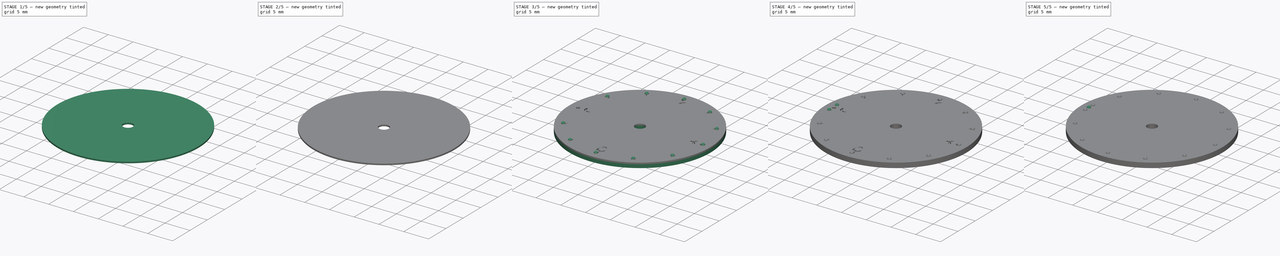
[diagram: build sequence overview — one tinted view per stage of 5, left to right]
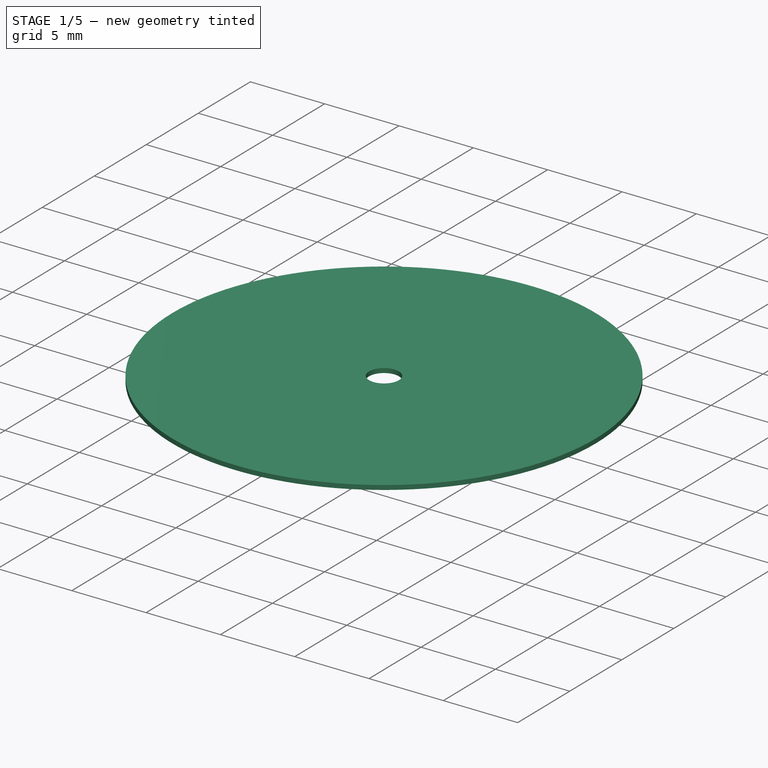
[diagram: stage 1 of 5 — iso view after this stage's code; geometry added in this stage tinted green]
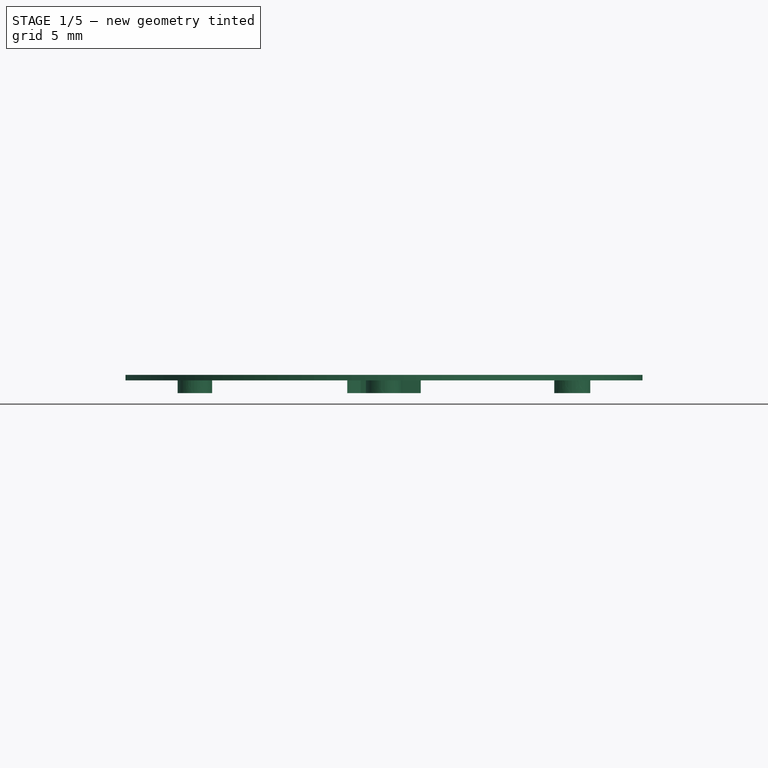
[diagram: stage 1 of 5 — front view after this stage's code; geometry added in this stage tinted green]
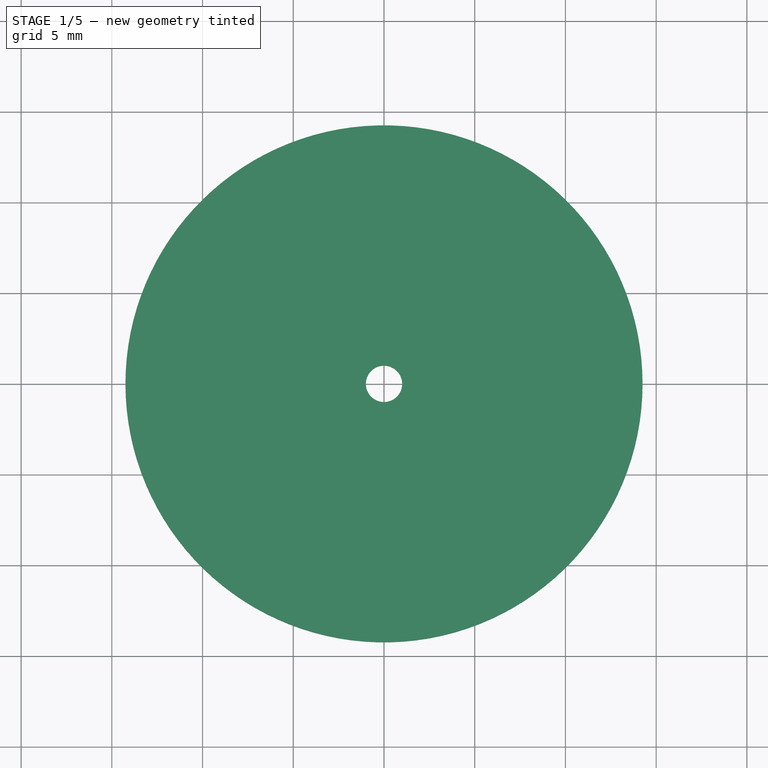
[diagram: stage 1 of 5 — top view after this stage's code; geometry added in this stage tinted green]
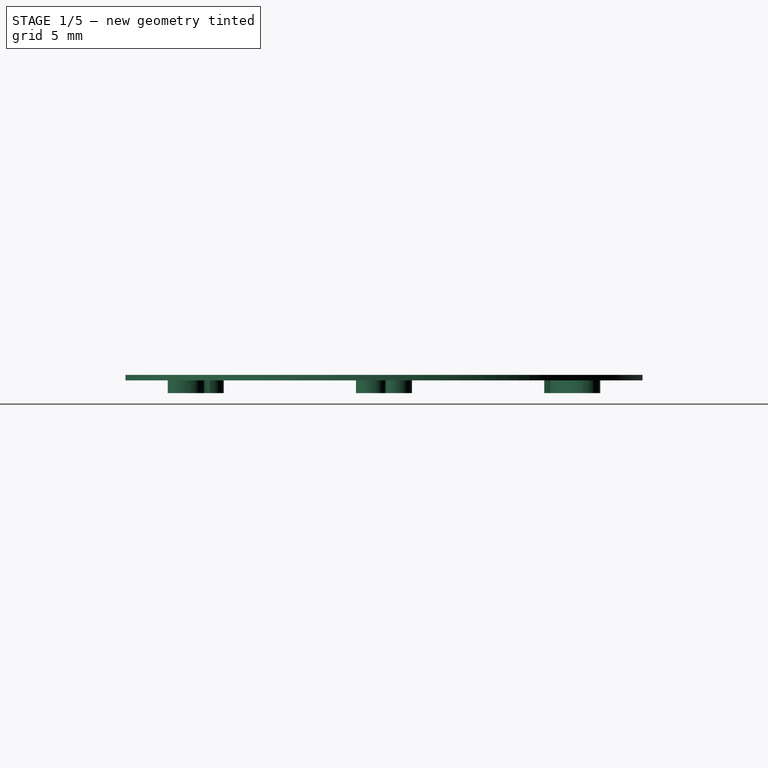
[diagram: stage 1 of 5 — right view after this stage's code; geometry added in this stage tinted green]
FCSTD DOCUMENT  (FreeCAD 0.19R20415 (Git))
Label: Vostok_Amphibia_dial
License: All rights reserved
LicenseURL: http://en.wikipedia.org/wiki/All_rights_reserved
objects: Sketcher::SketchObject×8, Part::Sphere×5, Part::FeaturePython×4, Part::Part2DObjectPython×4, Part::Extrusion×4, PartDesign::Pad×3, PartDesign::Body×3, Part::MultiFuse×2, Image::ImagePlane×2, Part::Cut×2, PartDesign::Pocket×1, PartDesign::PolarPattern×1, App::DocumentObjectGroup×1
note: 41 computed .brp shape members not serialized (recipe doc carries the construction recipe); baked Part::Feature solids carry a one-line shape summary decoded from their .brp

FEATURE [PartDesign::Body] Body008  label="DialSandwichHaut"
  Group = -> [Sketch031,Pad007,Sketch,Pocket,PolarPattern]
  Origin = -> Origin008
  Tip = -> PolarPattern
FEATURE [Image::ImagePlane] ImagePlane001
  Placement = pos=(0,0,-1) rot=(0,0,1;0rad)
  XSize = 28.5288
  YSize = 28.5288
FEATURE [Part::Part2DObjectPython] ShapeString  # Draft 2D object (typed FeaturePython)
  FontFile = <path>
  Placement = pos=(-2.49098,8.82935,0) rot=(0,0,1;0rad)
  Size = 3.25
  String = 12
  Tracking = 0
FEATURE [Part::Part2DObjectPython] ShapeString003  # Draft 2D object (typed FeaturePython)
  FontFile = <path>
  Placement = pos=(-11.5494,-1.54565,0) rot=(0,0,1;0rad)
  Size = 3.25
  String = 9
  Tracking = 0
FEATURE [Part::Part2DObjectPython] ShapeString006  # Draft 2D object (typed FeaturePython)
  FontFile = <path>
  Placement = pos=(-1.162,-11.9206,0) rot=(0,0,1;0rad)
  Size = 3.25
  String = 6
  Tracking = 0
FEATURE [Part::Part2DObjectPython] ShapeString009  # Draft 2D object (typed FeaturePython)
  FontFile = <path>
  Placement = pos=(9.20334,-1.54565,0) rot=(0,0,1;0rad)
  Size = 3.25
  String = 3
  Tracking = 0
FEATURE [App::DocumentObjectGroup] FcClock
  Group = -> [ShapeString,ShapeString003,ShapeString006,ShapeString009]
FEATURE [Sketcher::SketchObject] Sketch034
  sketch-geometry (119):
    g0: LineSegment StartX=-0.910828 StartY=8.82935 StartZ=0 EndX=-1.28344 EndY=8.82935 EndZ=0
    g1: LineSegment StartX=-0.910828 StartY=11.9206 StartZ=0 EndX=-0.910828 EndY=8.82935 EndZ=0
    g2: LineSegment StartX=-1.15096 StartY=11.9206 StartZ=0 EndX=-0.910828 EndY=11.9206 EndZ=0
    g3: BSplineCurve PolesCount=3 KnotsCount=2 Degree=2 IsPeriodic=0
    g4: BSplineCurve PolesCount=3 KnotsCount=2 Degree=2 IsPeriodic=0
    g5: LineSegment StartX=-2.02866 StartY=10.7725 StartZ=0 EndX=-2.02866 EndY=11.1257 EndZ=0
    g6: BSplineCurve PolesCount=3 KnotsCount=2 Degree=2 IsPeriodic=0
    g7: BSplineCurve PolesCount=3 KnotsCount=2 Degree=2 IsPeriodic=0
    g8: LineSegment StartX=-1.28344 StartY=8.82935 StartZ=0 EndX=-1.28344 EndY=11.2375 EndZ=0
    g9: LineSegment StartX=2.02866 StartY=9.18264 StartZ=0 EndX=2.02866 EndY=8.82935 EndZ=0
    g10: LineSegment StartX=0.539597 StartY=9.18264 StartZ=0 EndX=2.02866 EndY=9.18264 EndZ=0
    g11: BSplineCurve PolesCount=3 KnotsCount=2 Degree=2 IsPeriodic=0
    g12: BSplineCurve PolesCount=3 KnotsCount=2 Degree=2 IsPeriodic=0
    g13: BSplineCurve PolesCount=3 KnotsCount=2 Degree=2 IsPeriodic=0
    g14: BSplineCurve PolesCount=3 KnotsCount=2 Degree=2 IsPeriodic=0
    g15: BSplineCurve PolesCount=3 KnotsCount=2 Degree=2 IsPeriodic=0
    g16: BSplineCurve PolesCount=3 KnotsCount=2 Degree=2 IsPeriodic=0
    g17: BSplineCurve PolesCount=3 KnotsCount=2 Degree=2 IsPeriodic=0
    g18: BSplineCurve PolesCount=3 KnotsCount=2 Degree=2 IsPeriodic=0
    g19: BSplineCurve PolesCount=3 KnotsCount=2 Degree=2 IsPeriodic=0
    g20: LineSegment StartX=0.476115 StartY=10.9491 StartZ=0 EndX=0.0924628 EndY=10.9905 EndZ=0
    g21: BSplineCurve PolesCount=3 KnotsCount=2 Degree=2 IsPeriodic=0
    g22: BSplineCurve PolesCount=3 KnotsCount=2 Degree=2 IsPeriodic=0
    g23: BSplineCurve PolesCount=3 KnotsCount=2 Degree=2 IsPeriodic=0
    g24: BSplineCurve PolesCount=3 KnotsCount=2 Degree=2 IsPeriodic=0
    g25: BSplineCurve PolesCount=3 KnotsCount=2 Degree=2 IsPeriodic=0
    g26: BSplineCurve PolesCount=3 KnotsCount=2 Degree=2 IsPeriodic=0
    g27: BSplineCurve PolesCount=3 KnotsCount=2 Degree=2 IsPeriodic=0
    g28: BSplineCurve PolesCount=3 KnotsCount=2 Degree=2 IsPeriodic=0
    g29: BSplineCurve PolesCount=3 KnotsCount=2 Degree=2 IsPeriodic=0
    g30: LineSegment StartX=2.02866 StartY=8.82935 StartZ=0 EndX=0.0220807 EndY=8.82935 EndZ=0
    g31: LineSegment StartX=-11.3176 StartY=-0.783864 StartZ=0 EndX=-10.9588 EndY=-0.750743 EndZ=0
    g32: BSplineCurve PolesCount=3 KnotsCount=2 Degree=2 IsPeriodic=0
    g33: BSplineCurve PolesCount=3 KnotsCount=2 Degree=2 IsPeriodic=0
    g34: BSplineCurve PolesCount=3 KnotsCount=2 Degree=2 IsPeriodic=0
    g35: BSplineCurve PolesCount=3 KnotsCount=2 Degree=2 IsPeriodic=0
    g36: BSplineCurve PolesCount=3 KnotsCount=2 Degree=2 IsPeriodic=0
    g37: BSplineCurve PolesCount=3 KnotsCount=2 Degree=2 IsPeriodic=0
    g38: BSplineCurve PolesCount=3 KnotsCount=2 Degree=2 IsPeriodic=0
    g39: BSplineCurve PolesCount=3 KnotsCount=2 Degree=2 IsPeriodic=0
    g40: BSplineCurve PolesCount=3 KnotsCount=2 Degree=2 IsPeriodic=0
    g41: BSplineCurve PolesCount=3 KnotsCount=2 Degree=2 IsPeriodic=0
    g42: BSplineCurve PolesCount=3 KnotsCount=2 Degree=2 IsPeriodic=0
    g43: BSplineCurve PolesCount=3 KnotsCount=2 Degree=2 IsPeriodic=0
    g44: BSplineCurve PolesCount=3 KnotsCount=2 Degree=2 IsPeriodic=0
    g45: BSplineCurve PolesCount=3 KnotsCount=2 Degree=2 IsPeriodic=0
    g46: BSplineCurve PolesCount=3 KnotsCount=2 Degree=2 IsPeriodic=0
    g47: BSplineCurve PolesCount=3 KnotsCount=2 Degree=2 IsPeriodic=0
    g48: BSplineCurve PolesCount=3 KnotsCount=2 Degree=2 IsPeriodic=0
    g49: BSplineCurve PolesCount=3 KnotsCount=2 Degree=2 IsPeriodic=0
    g50: BSplineCurve PolesCount=3 KnotsCount=2 Degree=2 IsPeriodic=0
    g51: BSplineCurve PolesCount=3 KnotsCount=2 Degree=2 IsPeriodic=0
    g52: BSplineCurve PolesCount=3 KnotsCount=2 Degree=2 IsPeriodic=0
    g53: BSplineCurve PolesCount=3 KnotsCount=2 Degree=2 IsPeriodic=0
    g54: BSplineCurve PolesCount=3 KnotsCount=2 Degree=2 IsPeriodic=0
    g55: BSplineCurve PolesCount=3 KnotsCount=2 Degree=2 IsPeriodic=0
    g56: BSplineCurve PolesCount=3 KnotsCount=2 Degree=2 IsPeriodic=0
    g57: BSplineCurve PolesCount=3 KnotsCount=2 Degree=2 IsPeriodic=0
    g58: BSplineCurve PolesCount=3 KnotsCount=2 Degree=2 IsPeriodic=0
    g59: BSplineCurve PolesCount=3 KnotsCount=2 Degree=2 IsPeriodic=0
    g60: BSplineCurve PolesCount=3 KnotsCount=2 Degree=2 IsPeriodic=0
    g61: LineSegment StartX=0.948089 StartY=-9.59528 StartZ=0 EndX=0.576858 EndY=-9.62426 EndZ=0
    g62: BSplineCurve PolesCount=3 KnotsCount=2 Degree=2 IsPeriodic=0
    g63: BSplineCurve PolesCount=3 KnotsCount=2 Degree=2 IsPeriodic=0
    g64: BSplineCurve PolesCount=3 KnotsCount=2 Degree=2 IsPeriodic=0
    g65: BSplineCurve PolesCount=3 KnotsCount=2 Degree=2 IsPeriodic=0
    g66: BSplineCurve PolesCount=3 KnotsCount=2 Degree=2 IsPeriodic=0
    g67: BSplineCurve PolesCount=3 KnotsCount=2 Degree=2 IsPeriodic=0
    g68: BSplineCurve PolesCount=3 KnotsCount=2 Degree=2 IsPeriodic=0
    g69: BSplineCurve PolesCount=3 KnotsCount=2 Degree=2 IsPeriodic=0
    g70: BSplineCurve PolesCount=3 KnotsCount=2 Degree=2 IsPeriodic=0
    g71: BSplineCurve PolesCount=3 KnotsCount=2 Degree=2 IsPeriodic=0
    g72: BSplineCurve PolesCount=3 KnotsCount=2 Degree=2 IsPeriodic=0
    g73: BSplineCurve PolesCount=3 KnotsCount=2 Degree=2 IsPeriodic=0
    g74: BSplineCurve PolesCount=3 KnotsCount=2 Degree=2 IsPeriodic=0
    g75: BSplineCurve PolesCount=3 KnotsCount=2 Degree=2 IsPeriodic=0
    g76: BSplineCurve PolesCount=3 KnotsCount=2 Degree=2 IsPeriodic=0
    g77: BSplineCurve PolesCount=3 KnotsCount=2 Degree=2 IsPeriodic=0
    g78: BSplineCurve PolesCount=3 KnotsCount=2 Degree=2 IsPeriodic=0
    g79: BSplineCurve PolesCount=3 KnotsCount=2 Degree=2 IsPeriodic=0
    g80: BSplineCurve PolesCount=3 KnotsCount=2 Degree=2 IsPeriodic=0
    g81: BSplineCurve PolesCount=3 KnotsCount=2 Degree=2 IsPeriodic=0
    g82: BSplineCurve PolesCount=3 KnotsCount=2 Degree=2 IsPeriodic=0
    g83: BSplineCurve PolesCount=3 KnotsCount=2 Degree=2 IsPeriodic=0
    g84: BSplineCurve PolesCount=3 KnotsCount=2 Degree=2 IsPeriodic=0
    g85: BSplineCurve PolesCount=3 KnotsCount=2 Degree=2 IsPeriodic=0
    g86: BSplineCurve PolesCount=3 KnotsCount=2 Degree=2 IsPeriodic=0
    g87: BSplineCurve PolesCount=3 KnotsCount=2 Degree=2 IsPeriodic=0
    g88: BSplineCurve PolesCount=3 KnotsCount=2 Degree=2 IsPeriodic=0
    g89: LineSegment StartX=9.38137 StartY=-0.712102 StartZ=0 EndX=9.75398 EndY=-0.66242 EndZ=0
    g90: BSplineCurve PolesCount=3 KnotsCount=2 Degree=2 IsPeriodic=0
    g91: BSplineCurve PolesCount=3 KnotsCount=2 Degree=2 IsPeriodic=0
    g92: BSplineCurve PolesCount=3 KnotsCount=2 Degree=2 IsPeriodic=0
    g93: BSplineCurve PolesCount=3 KnotsCount=2 Degree=2 IsPeriodic=0
    g94: BSplineCurve PolesCount=3 KnotsCount=2 Degree=2 IsPeriodic=0
    g95: BSplineCurve PolesCount=3 KnotsCount=2 Degree=2 IsPeriodic=0
    g96: BSplineCurve PolesCount=3 KnotsCount=2 Degree=2 IsPeriodic=0
    g97: BSplineCurve PolesCount=3 KnotsCount=2 Degree=2 IsPeriodic=0
    g98: BSplineCurve PolesCount=3 KnotsCount=2 Degree=2 IsPeriodic=0
    g99: BSplineCurve PolesCount=3 KnotsCount=2 Degree=2 IsPeriodic=0
    g100: BSplineCurve PolesCount=3 KnotsCount=2 Degree=2 IsPeriodic=0
    g101: BSplineCurve PolesCount=3 KnotsCount=2 Degree=2 IsPeriodic=0
    g102: BSplineCurve PolesCount=3 KnotsCount=2 Degree=2 IsPeriodic=0
    g103: LineSegment StartX=9.79124 StartY=0.66242 StartZ=0 EndX=9.41863 EndY=0.728662 EndZ=0
    g104: BSplineCurve PolesCount=3 KnotsCount=2 Degree=2 IsPeriodic=0
    g105: BSplineCurve PolesCount=3 KnotsCount=2 Degree=2 IsPeriodic=0
    g106: BSplineCurve PolesCount=3 KnotsCount=2 Degree=2 IsPeriodic=0
    g107: BSplineCurve PolesCount=3 KnotsCount=2 Degree=2 IsPeriodic=0
    g108: BSplineCurve PolesCount=3 KnotsCount=2 Degree=2 IsPeriodic=0
    g109: BSplineCurve PolesCount=3 KnotsCount=2 Degree=2 IsPeriodic=0
    g110: BSplineCurve PolesCount=3 KnotsCount=2 Degree=2 IsPeriodic=0
    g111: LineSegment StartX=10.1169 StartY=-0.129724 StartZ=0 EndX=10.1583 EndY=0.224947 EndZ=0
    g112: BSplineCurve PolesCount=3 KnotsCount=2 Degree=2 IsPeriodic=0
    g113: BSplineCurve PolesCount=3 KnotsCount=2 Degree=2 IsPeriodic=0
    g114: BSplineCurve PolesCount=3 KnotsCount=2 Degree=2 IsPeriodic=0
    g115: BSplineCurve PolesCount=3 KnotsCount=2 Degree=2 IsPeriodic=0
    g116: BSplineCurve PolesCount=3 KnotsCount=2 Degree=2 IsPeriodic=0
    g117: BSplineCurve PolesCount=3 KnotsCount=2 Degree=2 IsPeriodic=0
    g118: BSplineCurve PolesCount=3 KnotsCount=2 Degree=2 IsPeriodic=0
  constraints (127):
    c: Horizontal(g0)
    c: Coincident(g0,g1)
    c: Vertical(g1)
    c: Coincident(g1,g2)
    c: Horizontal(g2)
    c: Coincident(g2,g3)
    c: Coincident(g3,g4)
    c: Coincident(g4,g5)
    c: Vertical(g5)
    c: Coincident(g5,g6)
    c: Coincident(g6,g7)
    c: Coincident(g7,g8)
    c: Vertical(g8)
    c: Coincident(g8,g0)
    c: Vertical(g9)
    c: Coincident(g9,g10)
    c: Horizontal(g10)
    c: Coincident(g10,g11)
    c: Coincident(g11,g12)
    c: Coincident(g12,g13)
    c: Coincident(g13,g14)
    c: Coincident(g14,g15)
    c: Coincident(g15,g16)
    c: Coincident(g16,g17)
    c: Coincident(g17,g18)
    c: Coincident(g18,g19)
    c: Coincident(g19,g20)
    c: Coincident(g20,g21)
    c: Coincident(g21,g22)
    c: Coincident(g22,g23)
    c: Coincident(g23,g24)
    c: Coincident(g24,g25)
    c: Coincident(g25,g26)
    c: Coincident(g26,g27)
    c: Coincident(g27,g28)
    c: Coincident(g28,g29)
    c: Coincident(g29,g30)
    c: Horizontal(g30)
    c: Coincident(g30,g9)
    c: Coincident(g31,g32)
    c: Coincident(g32,g33)
    c: Coincident(g33,g34)
    c: Coincident(g34,g35)
    c: Coincident(g35,g36)
    c: Coincident(g36,g37)
    c: Coincident(g37,g38)
    c: Coincident(g38,g39)
    c: Coincident(g39,g40)
    c: Coincident(g40,g41)
    c: Coincident(g41,g42)
    c: Coincident(g42,g43)
    c: Coincident(g43,g44)
    c: Coincident(g44,g45)
    c: Coincident(g45,g46)
    c: Coincident(g46,g47)
    c: Coincident(g47,g48)
    c: Coincident(g48,g49)
    c: Coincident(g49,g50)
    c: Coincident(g50,g51)
    c: Coincident(g51,g52)
    c: Coincident(g52,g31)
    c: Coincident(g53,g54)
    c: Coincident(g54,g55)
    c: Coincident(g55,g56)
    c: Coincident(g56,g57)
    c: Coincident(g57,g58)
    c: Coincident(g58,g59)
    c: Coincident(g59,g60)
    c: Coincident(g60,g53)
    c: Coincident(g61,g62)
    c: Coincident(g62,g63)
    c: Coincident(g63,g64)
    c: Coincident(g64,g65)
    c: Coincident(g65,g66)
    c: Coincident(g66,g67)
    c: Coincident(g67,g68)
    c: Coincident(g68,g69)
    c: Coincident(g69,g70)
    c: Coincident(g70,g71)
    c: Coincident(g71,g72)
    c: Coincident(g72,g73)
    c: Coincident(g73,g74)
    c: Coincident(g74,g75)
    c: Coincident(g75,g76)
    c: Coincident(g76,g77)
    c: Coincident(g77,g78)
    c: Coincident(g78,g79)
    c: Coincident(g79,g61)
    c: Coincident(g80,g81)
    c: Coincident(g81,g82)
    c: Coincident(g82,g83)
    c: Coincident(g83,g84)
    c: Coincident(g84,g85)
    c: Coincident(g85,g86)
    c: Coincident(g86,g87)
    c: Coincident(g87,g88)
    c: Coincident(g88,g80)
    c: Coincident(g89,g90)
    c: Coincident(g90,g91)
    c: Coincident(g91,g92)
    c: Coincident(g92,g93)
    c: Coincident(g93,g94)
    c: Coincident(g94,g95)
    c: Coincident(g95,g96)
    c: Coincident(g96,g97)
    c: Coincident(g97,g98)
    c: Coincident(g98,g99)
    c: Coincident(g99,g100)
    c: Coincident(g100,g101)
    c: Coincident(g101,g102)
    c: Coincident(g102,g103)
    c: Coincident(g103,g104)
    c: Coincident(g104,g105)
    c: Coincident(g105,g106)
    c: Coincident(g106,g107)
    c: Coincident(g107,g108)
    c: Coincident(g108,g109)
    c: Coincident(g109,g110)
    c: Coincident(g110,g111)
    c: Coincident(g111,g112)
    c: Coincident(g112,g113)
    c: Coincident(g113,g114)
    c: Coincident(g114,g115)
    c: Coincident(g115,g116)
    c: Coincident(g116,g117)
    c: Coincident(g117,g118)
    c: Coincident(g118,g89)
FEATURE [Sketcher::SketchObject] Sketch035
  sketch-geometry (11):
    g0: Circle CenterX=0 CenterY=12.5 CenterZ=0 NormalX=0 NormalY=0 NormalZ=1 AngleXU=0 Radius=0.35
    g1: LineSegment [constr] StartX=6 StartY=10.3923 StartZ=0 EndX=0 EndY=0 EndZ=0
    g2: LineSegment StartX=6 StartY=10.3923 StartZ=0 EndX=6.13194 EndY=11.4708 EndZ=0
    g3: LineSegment StartX=6.13194 StartY=11.4708 StartZ=0 EndX=6.86806 EndY=11.0458 EndZ=0
    g4: LineSegment StartX=6.86806 StartY=11.0458 StartZ=0 EndX=6 EndY=10.3923 EndZ=0
    g5: LineSegment [constr] StartX=6 StartY=10.3923 StartZ=0 EndX=6.5 EndY=11.2583 EndZ=0
    g6: LineSegment StartX=10.3923 StartY=6 StartZ=0 EndX=11.0458 EndY=6.86806 EndZ=0
    g7: LineSegment StartX=11.0458 StartY=6.86806 StartZ=0 EndX=11.4708 EndY=6.13194 EndZ=0
    g8: LineSegment StartX=11.4708 StartY=6.13194 StartZ=0 EndX=10.3923 EndY=6 EndZ=0
    g9: LineSegment [constr] StartX=10.3923 StartY=6 StartZ=0 EndX=11.2583 EndY=6.5 EndZ=0
    g10: LineSegment [constr] StartX=10.3923 StartY=6 StartZ=0 EndX=0 EndY=0 EndZ=0
  constraints (29):
    c: PointOnObject(g0,g-2)
    c: Radius(g0) = 0.35
    c: DistanceY(g0) = 12.5
    c: Coincident(g1,g-1)
    c: Coincident(g1,g2)
    c: Coincident(g2,g3)
    c: Coincident(g3,g4)
    c: Coincident(g4,g2)
    c: Angle(g1,g-2) = 0.523599
    c: Coincident(g5,g2)
    c: PointOnObject(g5,g3)
    c: Parallel(g5,g1)
    c: Symmetric(g2,g3,g5)
    c: Distance(g3) = 0.85
    c: Distance(g2,g5) = 1
    c: Distance(g1) = 12
    c: Coincident(g6,g7)
    c: Coincident(g7,g8)
    c: Coincident(g8,g6)
    c: Coincident(g9,g6)
    c: PointOnObject(g9,g7)
    c: Symmetric(g6,g7,g9)
    c: Equal(g3,g7) = 0.85
    c: Distance(g6,g9) = 1
    c: Coincident(g10,g6)
    c: Coincident(g10,g-1)
    c: Parallel(g10,g9)
    c: Angle(g10,g1) = 0.523599
    c: Equal(g10,g1)
FEATURE [Part::FeaturePython] Array003  # Draft array (typed FeaturePython)
  Angle = 360
  ArrayType = 1
  Axis = (0,0,1)
  Base = -> Sketch035
  Center = (0,0,0)
  Fuse = false
  IntervalAxis = (0,0,0)
  IntervalX = (1,0,0)
  IntervalY = (0,1,0)
  IntervalZ = (0,0,1)
  NumberCircles = 2
  NumberPolar = 4
  NumberX = 1
  NumberY = 1
  NumberZ = 1
  RadialDistance = 1
  Symmetry = 1
  TangentialDistance = 1
FEATURE [Sketcher::SketchObject] Sketch036
  sketch-geometry (1):
    g0: Circle CenterX=-5.9 CenterY=2.75 CenterZ=0 NormalX=0 NormalY=0 NormalZ=1 AngleXU=0 Radius=5
  constraints (3):
    c: Radius(g0) = 5
    c: DistanceX(g0) = -5.9
    c: DistanceY(g0) = 2.75
FEATURE [Part::Extrusion] Extrude
  Base = -> Sketch034
  Dir = (0,0,1)
  DirMode = 2
  FaceMakerClass = Part::FaceMakerBullseye
  LengthFwd = 1
  LengthRev = 0
  Solid = true
  Symmetric = false
FEATURE [Part::Extrusion] Extrude002
  Base = -> Sketch036
  Dir = (0,0,1)
  DirMode = 2
  FaceMakerClass = Part::FaceMakerBullseye
  LengthFwd = 1
  LengthRev = 0
  Solid = true
  Symmetric = false
FEATURE [Part::Cut] Cut
  Base = -> Extrude
  Tool = -> Extrude002
FEATURE [Sketcher::SketchObject] Sketch037
  AttachmentOffset = pos=(0,0,0.7) rot=(0,0,1;0rad)
  MapMode = 5
  Placement = pos=(0,0,0.7) rot=(0,0,1;0rad)
  sketch-geometry (2):
    g0: Circle CenterX=0 CenterY=0 CenterZ=0 NormalX=0 NormalY=0 NormalZ=1 AngleXU=0 Radius=14.25
    g1: Circle CenterX=0 CenterY=0 CenterZ=0 NormalX=0 NormalY=0 NormalZ=1 AngleXU=0 Radius=1
  constraints (4):
    c: Coincident(g0,g-1)
    c: Diameter(g0) = 28.5
    c: Coincident(g1,g0)
    c: Diameter(g1) = 2
FEATURE [Part::Extrusion] Extrude003
  Base = -> Sketch037
  Dir = (0,0,1)
  DirMode = 2
  FaceMakerClass = Part::FaceMakerBullseye
  LengthFwd = 0.3
  LengthRev = 0
  Solid = true
  Symmetric = false
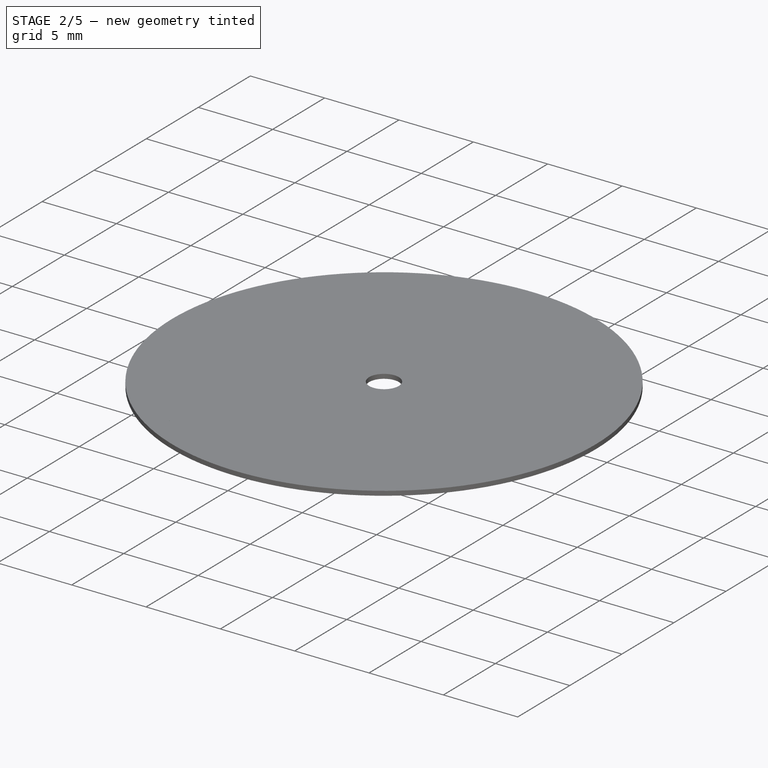
[diagram: stage 2 of 5 — iso view after this stage's code; geometry added in this stage tinted green]
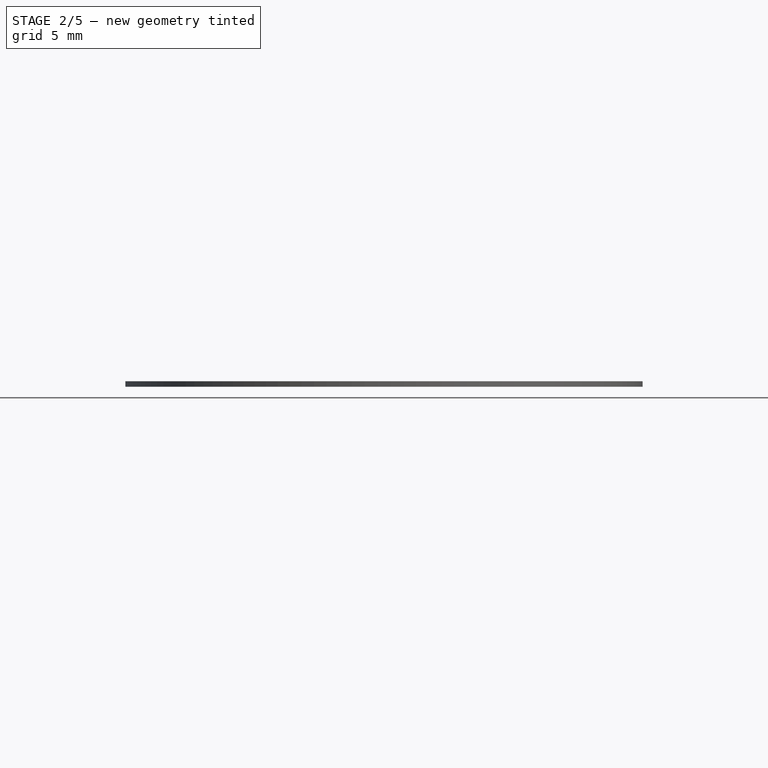
[diagram: stage 2 of 5 — front view after this stage's code; geometry added in this stage tinted green]
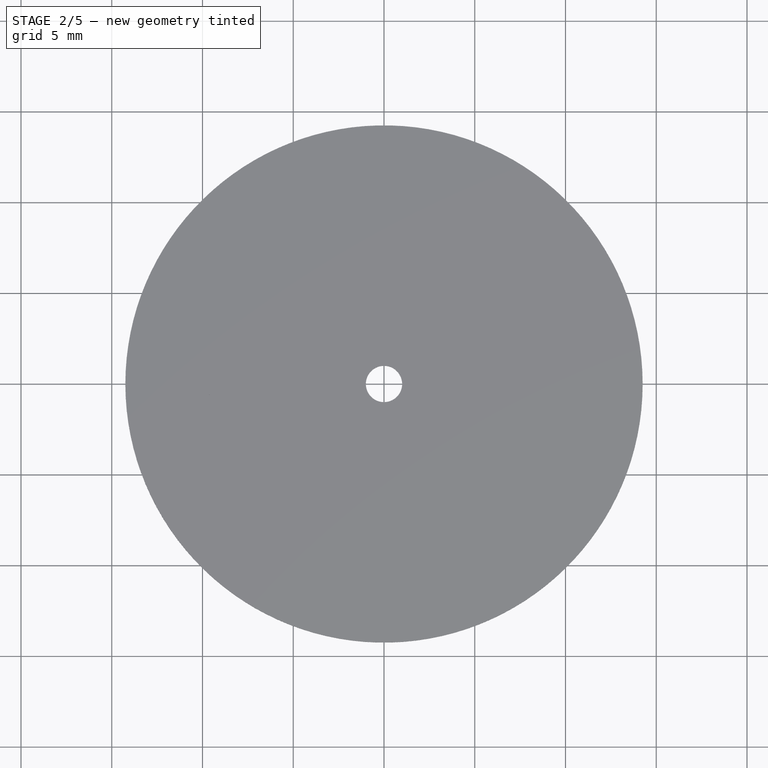
[diagram: stage 2 of 5 — top view after this stage's code; geometry added in this stage tinted green]
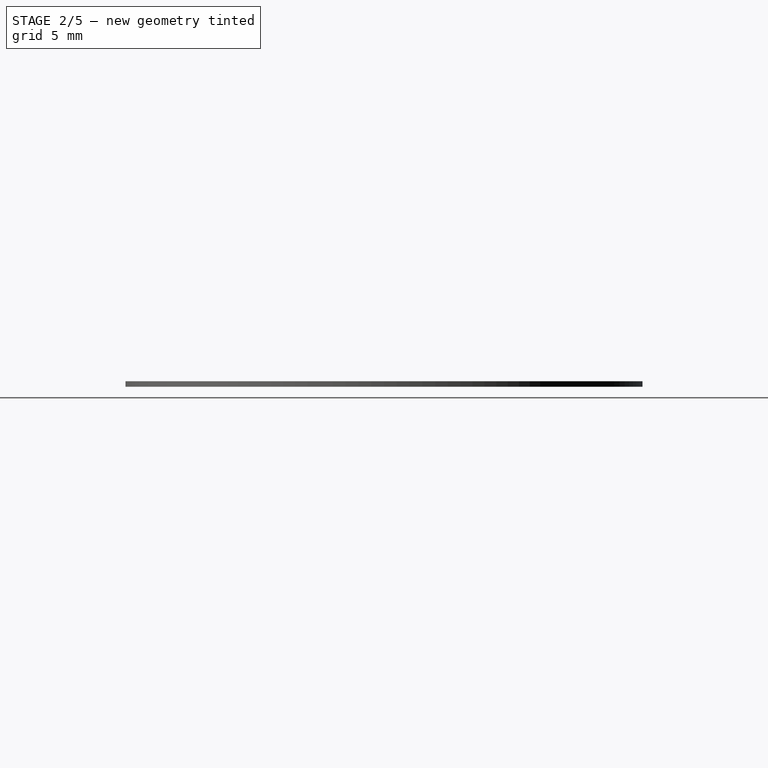
[diagram: stage 2 of 5 — right view after this stage's code; geometry added in this stage tinted green]
FEATURE [PartDesign::Body] Body007  label="DialSandwichBas"
  Group = -> [Sketch030,Pad006]
  Origin = -> Origin007
  Tip = -> Pad006
FEATURE [Sketcher::SketchObject] Sketch031
  AttachmentOffset = pos=(0,0,0.7) rot=(0,0,1;0rad)
  MapMode = 5
  Placement = pos=(0,0,0.7) rot=(0,0,1;0rad)
  Support = -> [XY_Plane008]
  sketch-geometry (2):
    g0: Circle CenterX=0 CenterY=0 CenterZ=0 NormalX=0 NormalY=0 NormalZ=1 AngleXU=0 Radius=14.25
    g1: Circle CenterX=0 CenterY=0 CenterZ=0 NormalX=0 NormalY=0 NormalZ=1 AngleXU=0 Radius=1
  constraints (4):
    c: Coincident(g0,g-1)
    c: Diameter(g0) = 28.5
    c: Coincident(g1,g0)
    c: Diameter(g1) = 2
FEATURE [PartDesign::Pad] Pad007
  AllowMultiFace = false
  Length = 0.3
  Length2 = 100
  Profile = -> Sketch031
  Type = 0
FEATURE [Part::Extrusion] Extrude001
  Base = -> Array003
  Dir = (0,0,1)
  DirMode = 2
  FaceMakerClass = Part::FaceMakerBullseye
  LengthFwd = 1
  LengthRev = 0
  Solid = true
  Symmetric = false
FEATURE [Part::MultiFuse] Fusion001
  Shapes = -> [Extrude001,Cut]
FEATURE [Part::Cut] Cut001  label="DialSandwichHaut_B"
  Base = -> Extrude003
  Tool = -> Fusion001
note: 4 file-system paths scrubbed to <path> (originals preserved in the JSON sidecar)
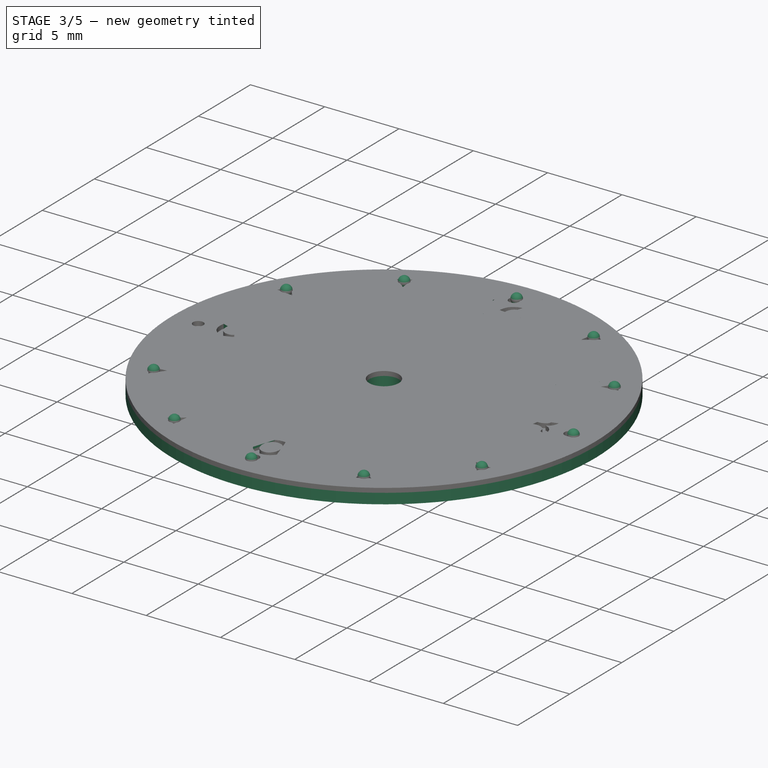
[diagram: stage 3 of 5 — iso view after this stage's code; geometry added in this stage tinted green]
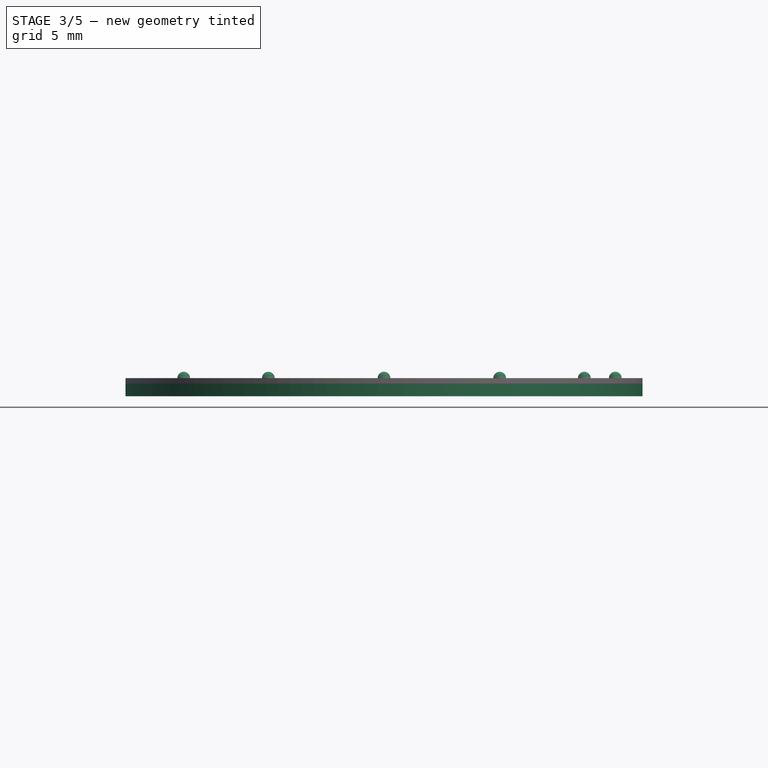
[diagram: stage 3 of 5 — front view after this stage's code; geometry added in this stage tinted green]
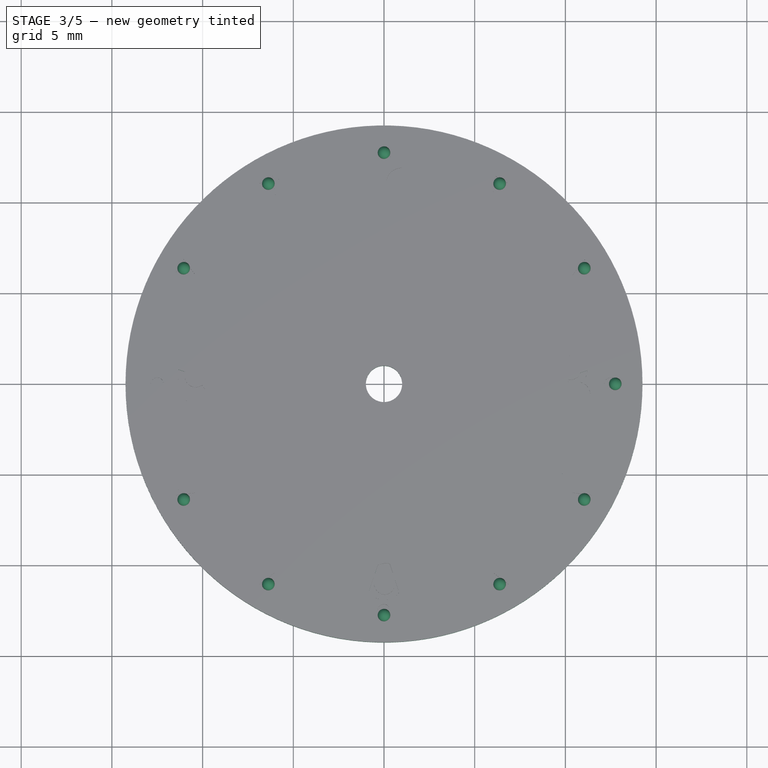
[diagram: stage 3 of 5 — top view after this stage's code; geometry added in this stage tinted green]
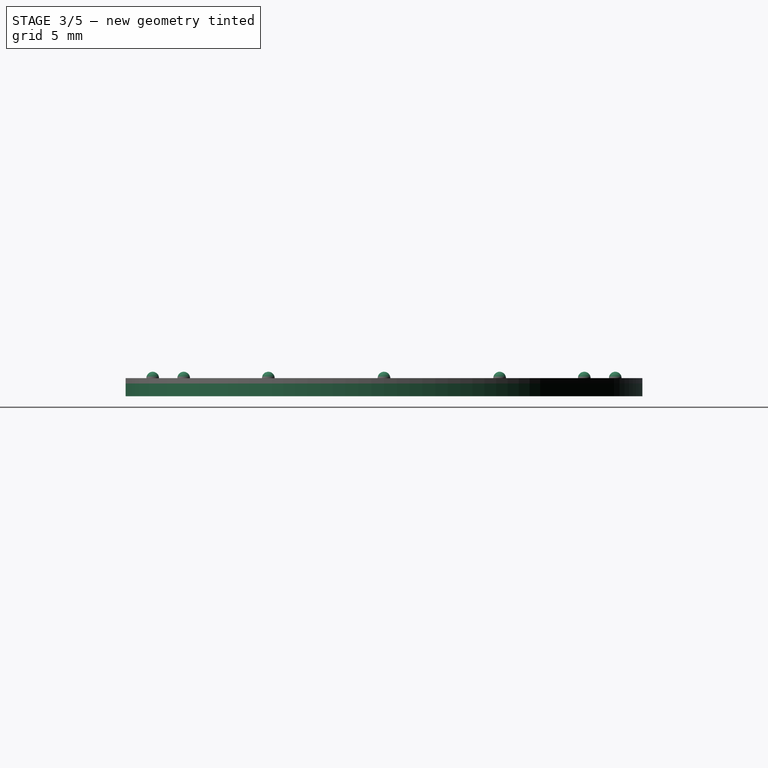
[diagram: stage 3 of 5 — right view after this stage's code; geometry added in this stage tinted green]
FEATURE [Part::Sphere] Sphere004  label="Sphère004"
  Angle1 = -90
  Angle2 = 90
  Angle3 = 360
  AttacherType = Attacher::AttachEngine3D
  Placement = pos=(-11.0418,-6.375,1) rot=(0,0,1;0.523599rad)
  Radius = 0.35
FEATURE [Part::FeaturePython] Array002  # Draft array (typed FeaturePython)
  Angle = 300
  ArrayType = 1
  Axis = (0,0,1)
  Base = -> Sphere004
  Center = (0,0,0)
  Fuse = false
  IntervalAxis = (0,0,0)
  IntervalX = (1,0,0)
  IntervalY = (0,1,0)
  IntervalZ = (0,0,1)
  NumberCircles = 2
  NumberPolar = 11
  NumberX = 1
  NumberY = 1
  NumberZ = 1
  RadialDistance = 1
  Symmetry = 1
  TangentialDistance = 1
FEATURE [Image::ImagePlane] ImagePlane
  Placement = pos=(0,0,1.01) rot=(0,0,1;0rad)
  XSize = 28.51
  YSize = 28.51
FEATURE [Sketcher::SketchObject] Sketch030
  MapMode = 5
  Support = -> [XY_Plane007]
  sketch-geometry (2):
    g0: Circle CenterX=0 CenterY=0 CenterZ=0 NormalX=0 NormalY=0 NormalZ=1 AngleXU=0 Radius=14.25
    g1: Circle CenterX=0 CenterY=0 CenterZ=0 NormalX=0 NormalY=0 NormalZ=1 AngleXU=0 Radius=1
  constraints (4):
    c: Coincident(g0,g-1)
    c: Diameter(g0) = 28.5
    c: Coincident(g1,g0)
    c: Diameter(g1) = 2
FEATURE [PartDesign::Pad] Pad006
  AllowMultiFace = false
  Length = 0.7
  Length2 = 100
  Profile = -> Sketch030
  Type = 0
FEATURE [Sketcher::SketchObject] Sketch
  AttachmentOffset = pos=(0,0,1) rot=(0,0,1;0rad)
  MapMode = 5
  Placement = pos=(0,0,1) rot=(0,0,1;0rad)
  Support = -> [XY_Plane008]
  sketch-geometry (31):
    g0: LineSegment StartX=-1.14194 StartY=13.4516 StartZ=0 EndX=1.14194 EndY=13.4516 EndZ=0
    g1: LineSegment StartX=1.37929 StartY=13.1231 StartZ=0 EndX=0.237348 EndY=9.67148 EndZ=0
    g2: LineSegment StartX=-0.237348 StartY=9.67148 StartZ=0 EndX=-1.37929 EndY=13.1231 EndZ=0
    g3: LineSegment [constr] StartX=0 StartY=0 StartZ=0 EndX=7.125 EndY=12.3409 EndZ=0
    g4: Circle [constr] CenterX=0 CenterY=0 CenterZ=0 NormalX=0 NormalY=0 NormalZ=1 AngleXU=0 Radius=14.25
    g5: LineSegment [constr] StartX=0 StartY=0 StartZ=0 EndX=12.3409 EndY=7.125 EndZ=0
    g6: LineSegment StartX=4.33373 StartY=8.75625 StartZ=0 EndX=6.08113 EndY=11.7828 EndZ=0
    g7: LineSegment StartX=6.42264 StartY=11.8743 StartZ=0 EndX=7.07215 EndY=11.4993 EndZ=0
    g8: LineSegment StartX=7.16366 StartY=11.1578 StartZ=0 EndX=5.41627 EndY=8.13125 EndZ=0
    g9: LineSegment StartX=5.07476 StartY=8.03974 StartZ=0 EndX=4.42524 EndY=8.41474 EndZ=0
    g10: LineSegment StartX=8.13125 StartY=5.41627 StartZ=0 EndX=11.1578 EndY=7.16366 EndZ=0
    g11: LineSegment StartX=11.4993 StartY=7.07215 StartZ=0 EndX=11.8743 EndY=6.42264 EndZ=0
    g12: LineSegment StartX=11.7828 StartY=6.08113 StartZ=0 EndX=8.75625 EndY=4.33373 EndZ=0
    g13: LineSegment StartX=8.41474 StartY=4.42524 StartZ=0 EndX=8.03974 EndY=5.07476 EndZ=0
    g14: ArcOfCircle CenterX=1.14194 CenterY=13.2016 CenterZ=0 NormalX=0 NormalY=0 NormalZ=1 AngleXU=0 Radius=0.25 StartAngle=5.96368 EndAngle=7.85398
    g15: ArcOfCircle CenterX=-1.14194 CenterY=13.2016 CenterZ=0 NormalX=0 NormalY=0 NormalZ=1 AngleXU=0 Radius=0.25 StartAngle=1.5708 EndAngle=3.4611
    g16: ArcOfCircle CenterX=-1e-16 CenterY=9.75 CenterZ=0 NormalX=0 NormalY=0 NormalZ=1 AngleXU=0 Radius=0.25 StartAngle=3.4611 EndAngle=5.96368
    g17: ArcOfCircle CenterX=4.55024 CenterY=8.63125 CenterZ=0 NormalX=0 NormalY=0 NormalZ=1 AngleXU=0 Radius=0.25 StartAngle=2.61799 EndAngle=4.18879
    g18: ArcOfCircle CenterX=5.19976 CenterY=8.25625 CenterZ=0 NormalX=0 NormalY=0 NormalZ=1 AngleXU=0 Radius=0.25 StartAngle=4.18879 EndAngle=5.75959
    g19: ArcOfCircle CenterX=6.29764 CenterY=11.6578 CenterZ=0 NormalX=0 NormalY=0 NormalZ=1 AngleXU=0 Radius=0.25 StartAngle=1.0472 EndAngle=2.61799
    g20: ArcOfCircle CenterX=6.94715 CenterY=11.2828 CenterZ=0 NormalX=0 NormalY=0 NormalZ=1 AngleXU=0 Radius=0.25 StartAngle=5.75959 EndAngle=7.33038
    g21: ArcOfCircle CenterX=11.2828 CenterY=6.94715 CenterZ=0 NormalX=0 NormalY=0 NormalZ=1 AngleXU=0 Radius=0.25 StartAngle=0.523599 EndAngle=2.0944
    g22: ArcOfCircle CenterX=11.6578 CenterY=6.29764 CenterZ=0 NormalX=0 NormalY=0 NormalZ=1 AngleXU=0 Radius=0.25 StartAngle=5.23599 EndAngle=6.80678
    g23: ArcOfCircle CenterX=8.63125 CenterY=4.55024 CenterZ=0 NormalX=0 NormalY=0 NormalZ=1 AngleXU=0 Radius=0.25 StartAngle=3.66519 EndAngle=5.23599
    g24: ArcOfCircle CenterX=8.25625 CenterY=5.19976 CenterZ=0 NormalX=0 NormalY=0 NormalZ=1 AngleXU=0 Radius=0.25 StartAngle=2.0944 EndAngle=3.66519
    g25: Circle [constr] CenterX=0 CenterY=0 CenterZ=0 NormalX=0 NormalY=0 NormalZ=1 AngleXU=0 Radius=13.5
    g26: Circle [constr] CenterX=0 CenterY=0 CenterZ=0 NormalX=0 NormalY=0 NormalZ=1 AngleXU=0 Radius=9.5
    g27: GeomPoint X=0 Y=9.5 Z=0
    g28: GeomPoint X=4.75 Y=8.22724 Z=0
    g29: GeomPoint X=8.22724 Y=4.75 Z=0
    g30: LineSegment [constr] StartX=1.41113 StartY=13.426 StartZ=0 EndX=0 EndY=0 EndZ=0
  constraints (70):
    c: Coincident(g3,g-1)
    c: Coincident(g4,g-1)
    c: Radius(g4) = 14.25
    c: PointOnObject(g3,g4)
    c: Coincident(g5,g-1)
    c: PointOnObject(g5,g4)
    c: Angle(g5,g3) = 0.523599
    c: Angle(g3,g-2) = 0.523599
    c: Tangent(g0,g14) = 1.5708
    c: Tangent(g1,g14) = 1.5708
    c: Tangent(g2,g15) = 1.5708
    c: Tangent(g0,g15) = 1.5708
    c: Tangent(g2,g16) = 1.5708
    c: Tangent(g1,g16) = 1.5708
    c: Tangent(g6,g17) = 1.5708
    c: Tangent(g9,g17) = 1.5708
    c: Tangent(g9,g18) = 1.5708
    c: Tangent(g8,g18) = 1.5708
    c: Tangent(g7,g19) = 1.5708
    c: Tangent(g6,g19) = 1.5708
    c: Tangent(g7,g20) = 1.5708
    c: Tangent(g8,g20) = 1.5708
    c: Tangent(g10,g21) = 1.5708
    c: Tangent(g11,g21) = 1.5708
    c: Tangent(g11,g22) = 1.5708
    c: Tangent(g12,g22) = 1.5708
    c: Tangent(g12,g23) = 1.5708
    c: Tangent(g13,g23) = 1.5708
    c: Tangent(g13,g24) = 1.5708
    c: Tangent(g10,g24) = 1.5708
    c: Radius(g24) = 0.25
    c: Equal(g24,g21)
    c: Equal(g21,g22)
    c: Equal(g22,g23)
    c: Equal(g23,g18)
    c: Equal(g18,g17)
    c: Equal(g17,g19)
    c: Equal(g19,g20)
    c: Equal(g20,g16)
    c: Equal(g16,g14)
    c: Symmetric(g0,g0,g-2)
    c: Symmetric(g2,g1,g-2)
    c: Coincident(g25,g-1)
    c: PointOnObject(g0,g25)
    c: PointOnObject(g7,g25)
    c: PointOnObject(g11,g25)
    c: Symmetric(g7,g7,g3)
    c: Symmetric(g9,g9,g3)
    c: Equal(g9,g7)
    c: Symmetric(g11,g11,g5)
    c: Symmetric(g13,g13,g5)
    c: Equal(g11,g13)
    c: Coincident(g26,g-1)
    c: PointOnObject(g27,g16)
    c: PointOnObject(g27,g-2)
    c: PointOnObject(g28,g9)
    c: PointOnObject(g29,g13)
    c: PointOnObject(g29,g26)
    c: PointOnObject(g28,g3)
    c: PointOnObject(g28,g26)
    c: PointOnObject(g29,g5)
    c: Equal(g13,g9)
    c: PointOnObject(g27,g26)
    c: Radius(g25) = 13.5
    c: PointOnObject(g30,g25)
    c: Coincident(g30,g-1)
    c: PointOnObject(g1,g30)
    c: Angle(g30,g-2) = 0.10472
    c: Distance(g6,g8) = 1.25
    c: Radius(g26) = 9.5
FEATURE [PartDesign::Pocket] Pocket
  BaseFeature = -> Pad007
  Length = 0.3
  Length2 = 100
  Profile = -> Sketch
  Type = 1
FEATURE [PartDesign::PolarPattern] PolarPattern
  Angle = 360
  Axis = -> Sketch [N_Axis]
  BaseFeature = -> Pocket
  Occurrences = 4
  Originals = -> [Pocket]
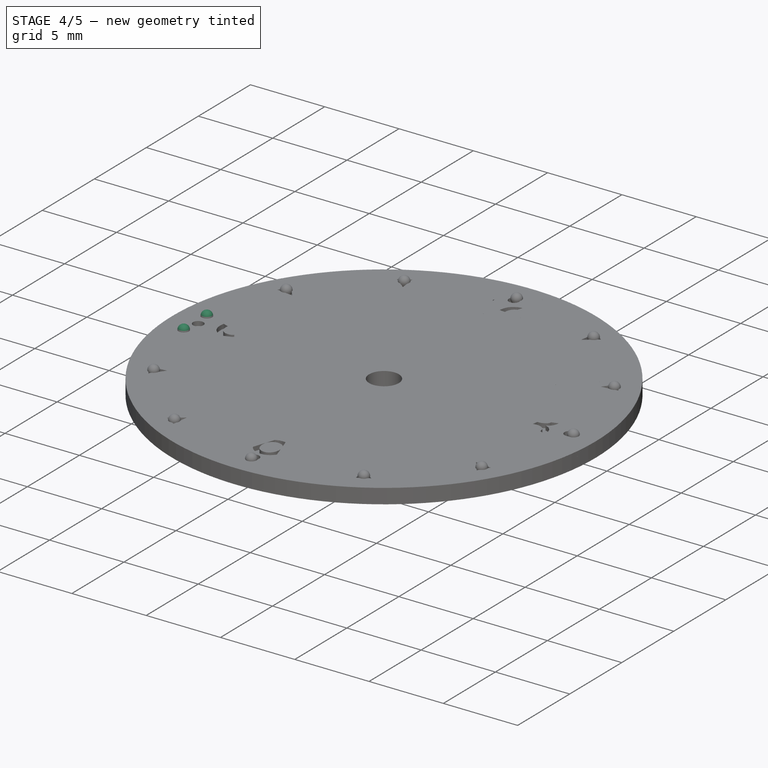
[diagram: stage 4 of 5 — iso view after this stage's code; geometry added in this stage tinted green]
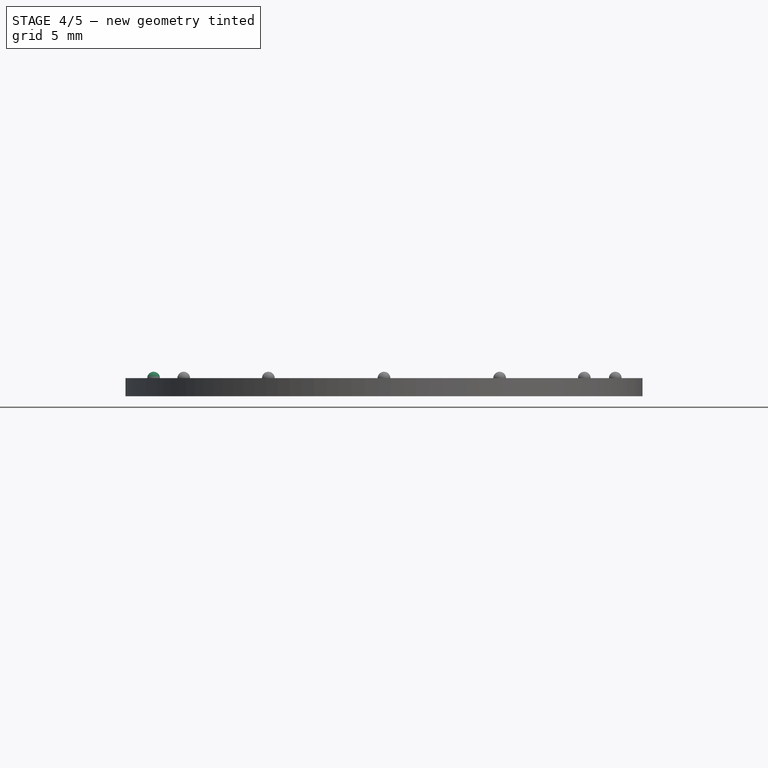
[diagram: stage 4 of 5 — front view after this stage's code; geometry added in this stage tinted green]
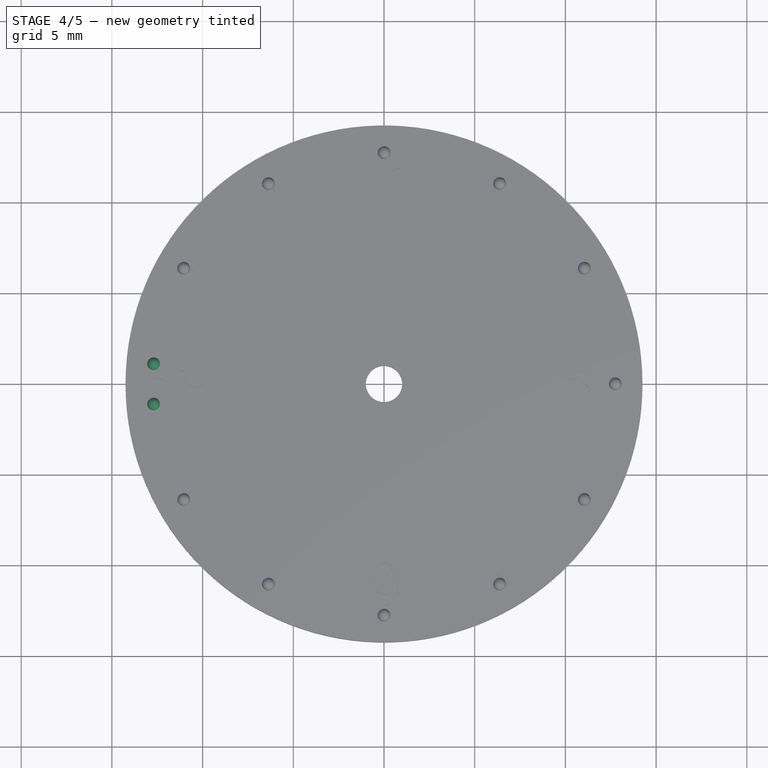
[diagram: stage 4 of 5 — top view after this stage's code; geometry added in this stage tinted green]
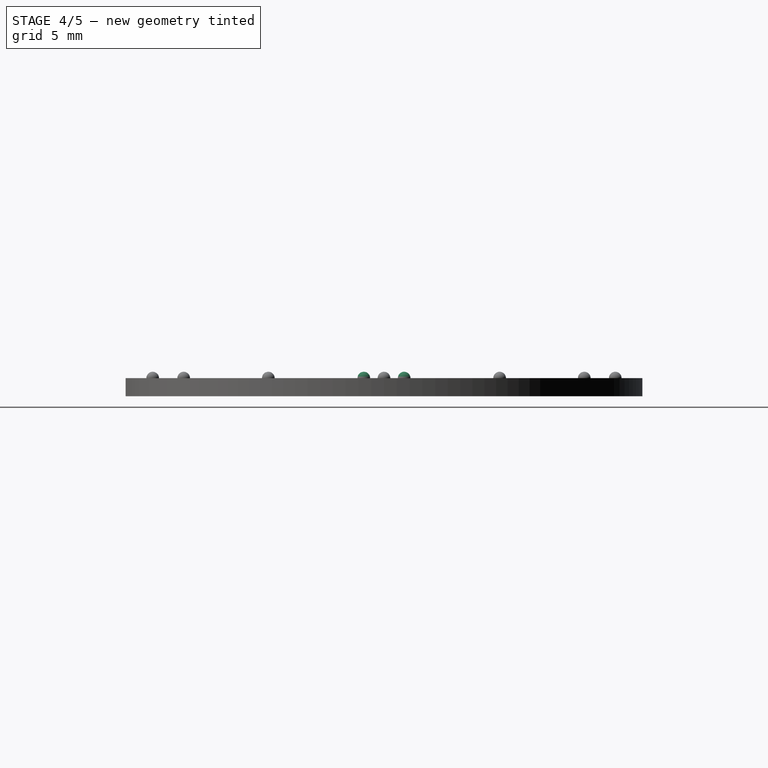
[diagram: stage 4 of 5 — right view after this stage's code; geometry added in this stage tinted green]
FEATURE [Part::Sphere] Sphere001  label="Sphère001"
  Angle1 = -90
  Angle2 = 90
  Angle3 = 360
  AttacherType = Attacher::AttachEngine3D
  Placement = pos=(0,12.75,1) rot=(0,0,1;0rad)
  Radius = 0.35
FEATURE [Part::Sphere] Sphere002  label="Sphère002"
  Angle1 = -90
  Angle2 = 90
  Angle3 = 360
  AttacherType = Attacher::AttachEngine3D
  Placement = pos=(-12.7015,-1.11124,1) rot=(0,0,1;0.087266rad)
  Radius = 0.35
FEATURE [Part::Sphere] Sphere003  label="Sphère003"
  Angle1 = -90
  Angle2 = 90
  Angle3 = 360
  AttacherType = Attacher::AttachEngine3D
  Placement = pos=(-12.7015,1.11124,1) rot=(0,0,-1;0.087266rad)
  Radius = 0.35
FEATURE [Part::MultiFuse] Fusion  label="13_Dots"
  Shapes = -> [Sphere002,Sphere003,Array002]
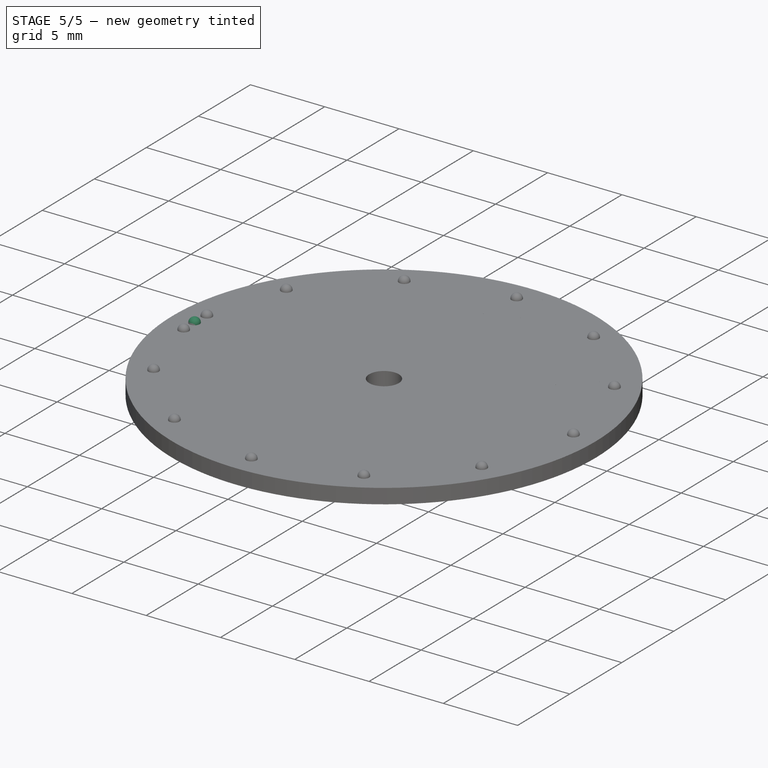
[diagram: stage 5 of 5 — iso view after this stage's code; geometry added in this stage tinted green]
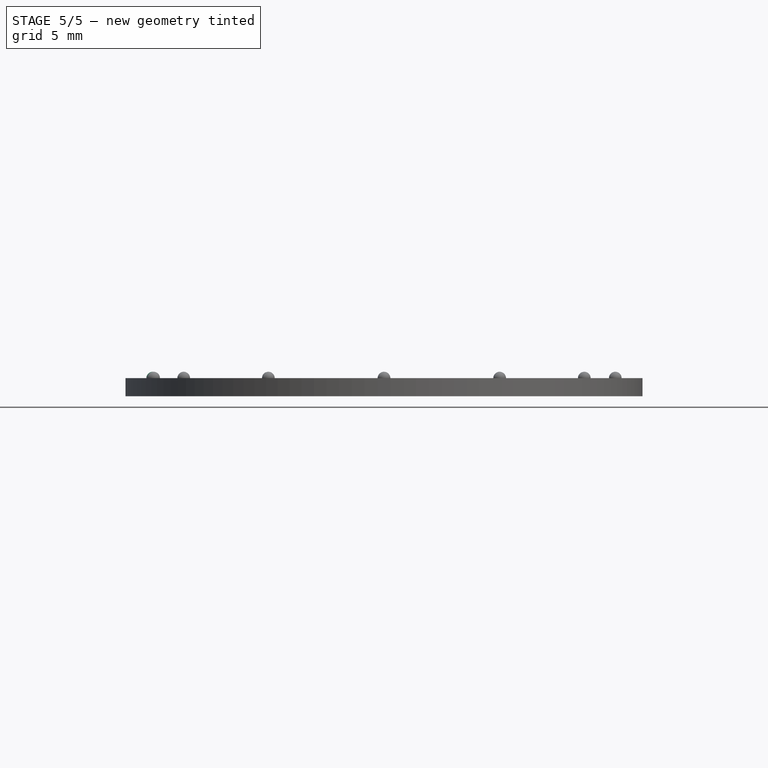
[diagram: stage 5 of 5 — front view after this stage's code; geometry added in this stage tinted green]
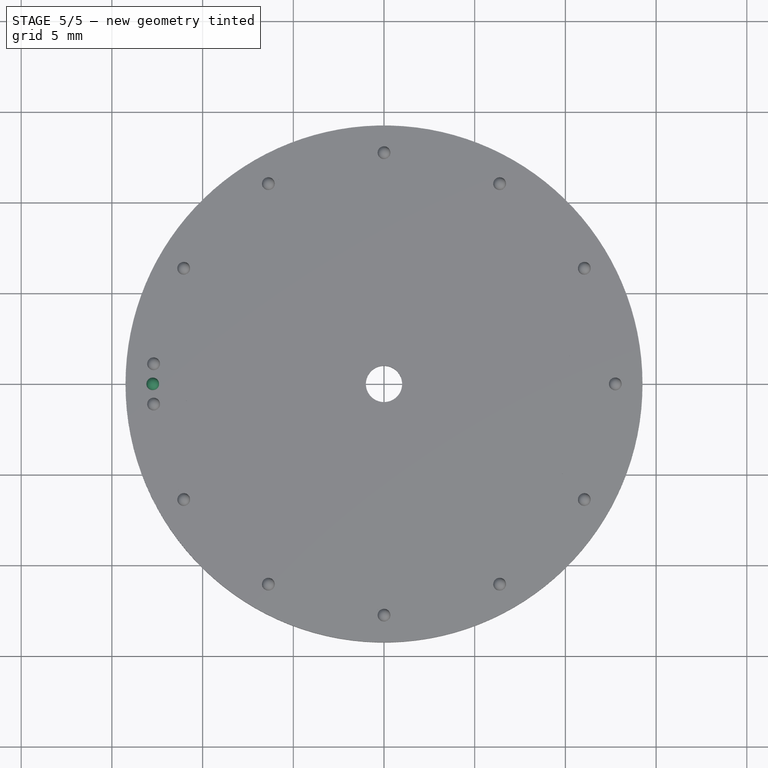
[diagram: stage 5 of 5 — top view after this stage's code; geometry added in this stage tinted green]
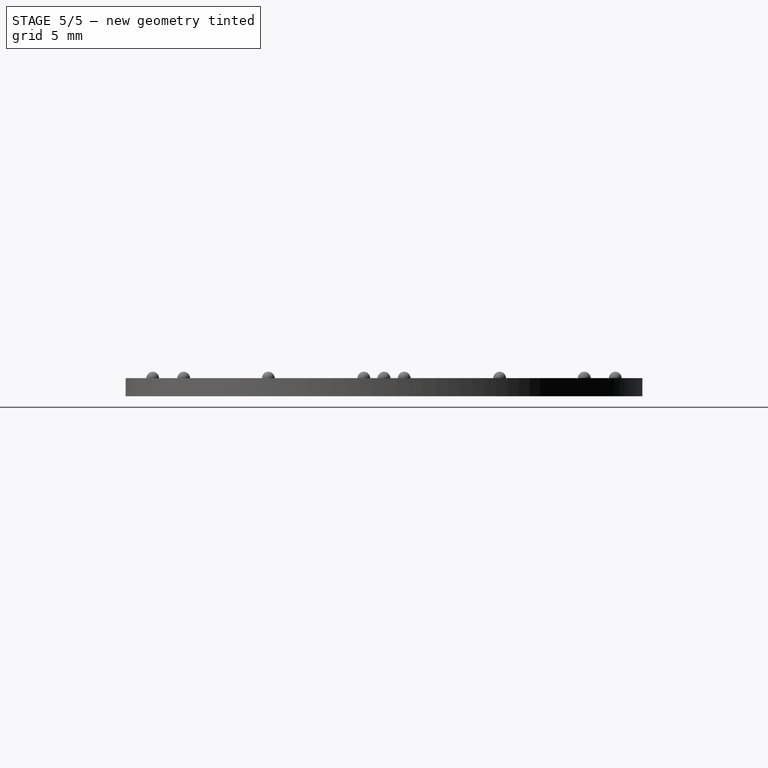
[diagram: stage 5 of 5 — right view after this stage's code; geometry added in this stage tinted green]
FEATURE [Sketcher::SketchObject] Sketch029
  MapMode = 5
  Support = -> [XY_Plane006]
  sketch-geometry (2):
    g0: Circle CenterX=0 CenterY=0 CenterZ=0 NormalX=0 NormalY=0 NormalZ=1 AngleXU=0 Radius=14.25
    g1: Circle CenterX=0 CenterY=0 CenterZ=0 NormalX=0 NormalY=0 NormalZ=1 AngleXU=0 Radius=1
  constraints (4):
    c: Coincident(g0,g-1)
    c: Diameter(g0) = 28.5
    c: Coincident(g1,g0)
    c: Diameter(g1) = 2
FEATURE [PartDesign::Pad] Pad005
  AllowMultiFace = false
  Length = 1
  Length2 = 100
  Profile = -> Sketch029
  Type = 0
FEATURE [PartDesign::Body] Body006  label="Dial"
  Group = -> [Sketch029,Pad005]
  Origin = -> Origin006
  Tip = -> Pad005
FEATURE [Part::Sphere] Sphere  label="Sphère"
  Angle1 = -90
  Angle2 = 90
  Angle3 = 360
  AttacherType = Attacher::AttachEngine3D
  Placement = pos=(-12.75,0,1) rot=(0,0,1;0rad)
  Radius = 0.35
FEATURE [Part::FeaturePython] Array  label="12_Dots"  # Draft array (typed FeaturePython)
  Angle = 360
  ArrayType = 1
  Axis = (0,0,1)
  Base = -> Sphere
  Center = (0,0,0)
  Fuse = false
  IntervalAxis = (0,0,0)
  IntervalX = (1,0,0)
  IntervalY = (0,1,0)
  IntervalZ = (0,0,1)
  NumberCircles = 2
  NumberPolar = 12
  NumberX = 1
  NumberY = 1
  NumberZ = 1
  RadialDistance = 1
  Symmetry = 1
  TangentialDistance = 1
FEATURE [Part::FeaturePython] Array001  label="11_Dots"  # Draft array (typed FeaturePython)
  Angle = 300
  ArrayType = 1
  Axis = (0,0,1)
  Base = -> Sphere001
  Center = (0,0,0)
  Fuse = false
  IntervalAxis = (0,0,0)
  IntervalX = (1,0,0)
  IntervalY = (0,1,0)
  IntervalZ = (0,0,1)
  NumberCircles = 2
  NumberPolar = 11
  NumberX = 1
  NumberY = 1
  NumberZ = 1
  Placement = pos=(0,0,0) rot=(0,0,1;3.66519rad)
  RadialDistance = 1
  Symmetry = 1
  TangentialDistance = 1
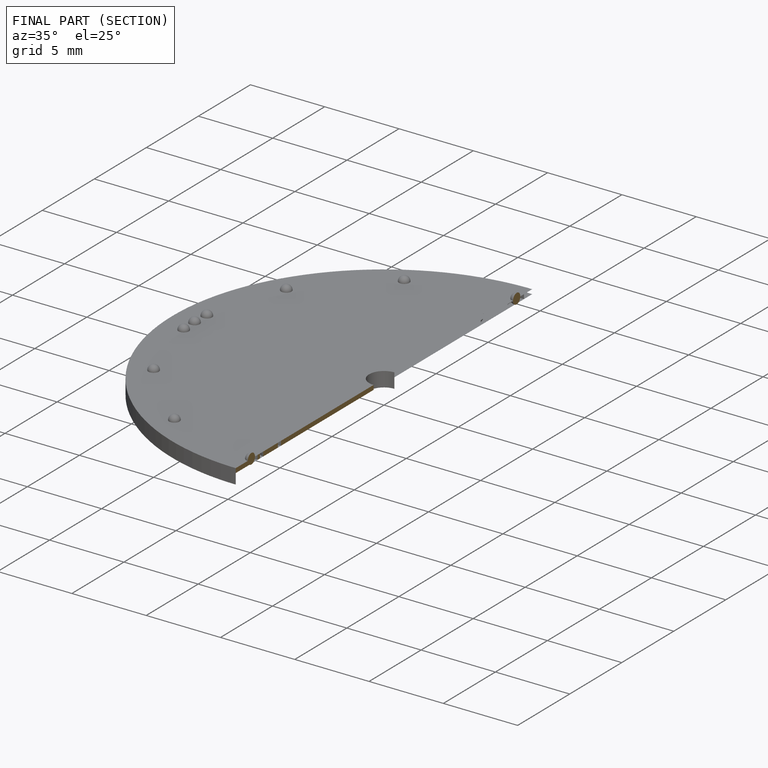
[diagram: finished part — half-section view (interior)]
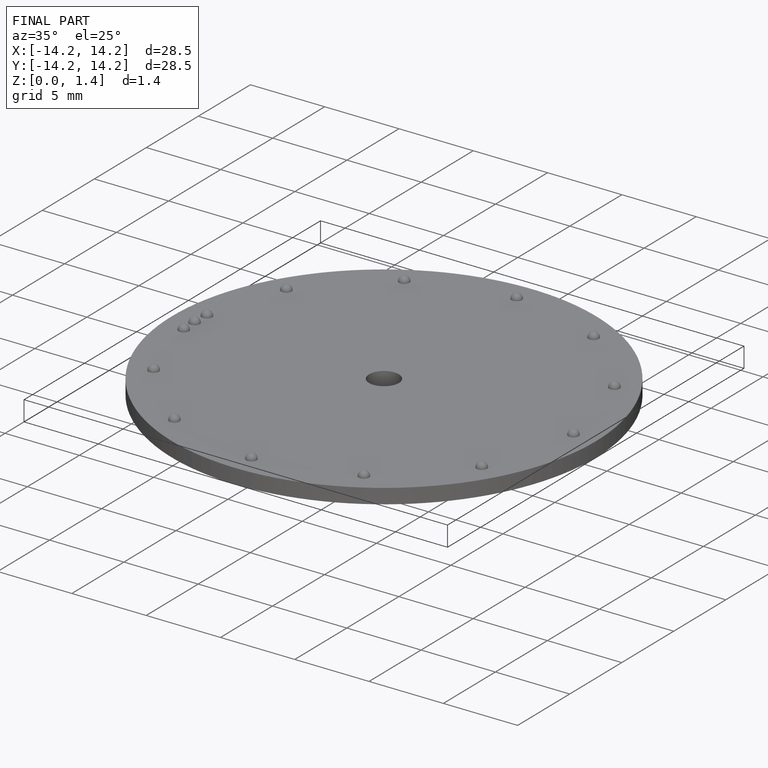
[diagram: finished part — iso view with bounding-box wireframe]
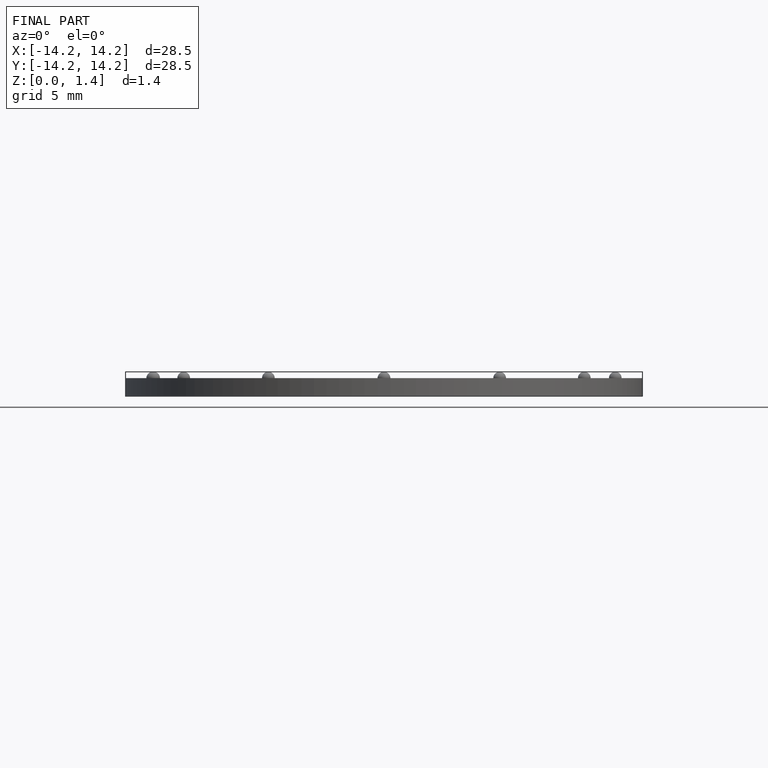
[diagram: finished part — front view with bounding-box wireframe]
